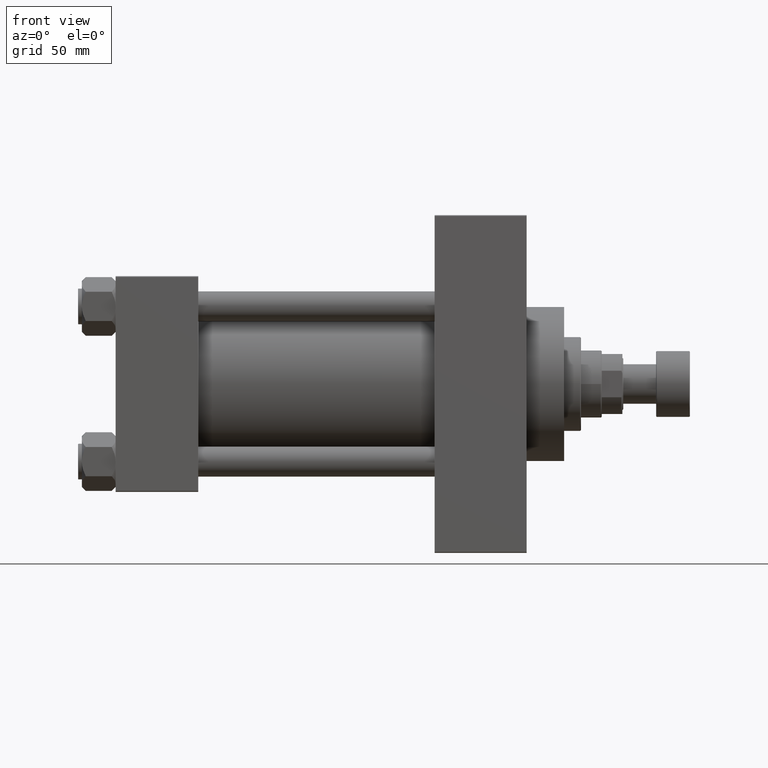
[diagram: clean part render]
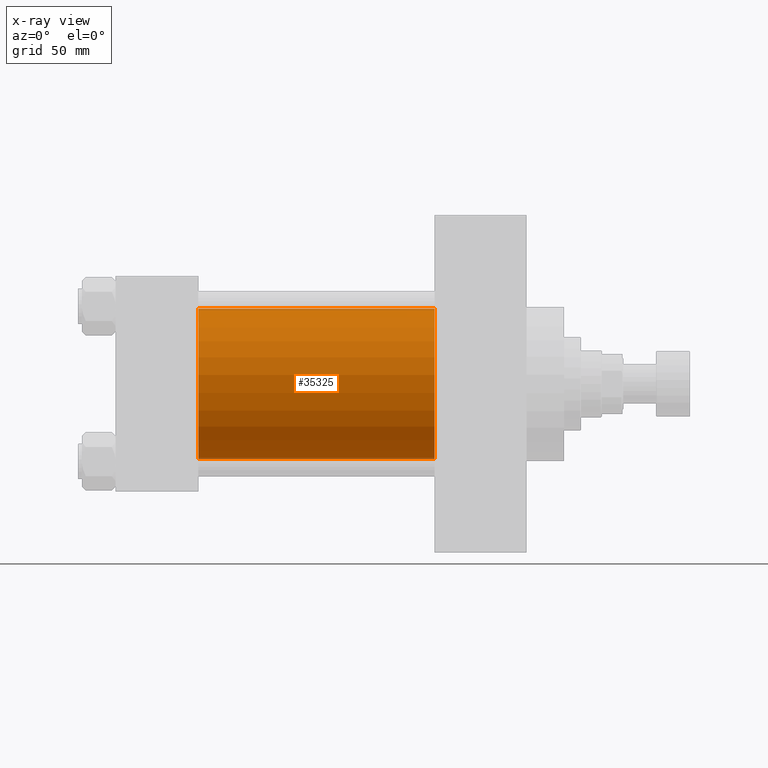
[diagram: x-ray — body ghosted, one internal face saturated and labeled with its STEP entity id]
A machine part, front view, then the same camera in x-ray: the body is ghosted and one INTERNAL B-rep face — a face not visible from any outside direction — is saturated and labeled: STEP entity #35325.
In plain terms, the highlighted cylindrical surface (partial cylindrical patch) has radius 40 mm, axis along (-1, -0, -0).
Its self-contained STEP definition (entity closure, byte-faithful):
#382 = ORIENTED_EDGE ( 'NONE', *, *, #38565, .T. ) ;
#1920 = VERTEX_POINT ( 'NONE', #10186 ) ;
#2093 = CARTESIAN_POINT ( 'NONE',  ( 169.9999999999999716, -2.602085213965210642E-15, 40.00000000000000000 ) ) ;
#4091 = DIRECTION ( 'NONE',  ( 0.000000000000000000, 0.000000000000000000, -1.000000000000000000 ) ) ;
#4336 = CARTESIAN_POINT ( 'NONE',  ( 44.00000000000000000, -2.602085213965210642E-15, 0.000000000000000000 ) ) ;
#6065 = VERTEX_POINT ( 'NONE', #2093 ) ;
#9878 = EDGE_LOOP ( 'NONE', ( #382, #29515, #43562, #16043 ) ) ;
#10186 = CARTESIAN_POINT ( 'NONE',  ( 44.00000000000000000, -2.602085213965210642E-15, 40.00000000000000000 ) ) ;
#10403 = VECTOR ( 'NONE', #18735, 1000.000000000000000 ) ;
#10742 = CARTESIAN_POINT ( 'NONE',  ( 169.9999999999999716, 2.296501982624201990E-15, -40.00000000000000000 ) ) ;
#12495 = DIRECTION ( 'NONE',  ( 0.000000000000000000, 0.000000000000000000, -1.000000000000000000 ) ) ;
#14752 = AXIS2_PLACEMENT_3D ( 'NONE', #18311, #21008, #28536 ) ;
#14849 = LINE ( 'NONE', #34059, #10403 ) ;
#16043 = ORIENTED_EDGE ( 'NONE', *, *, #18223, .F. ) ;
#16146 = CARTESIAN_POINT ( 'NONE',  ( 169.9999999999999716, -2.602085213965210642E-15, 0.000000000000000000 ) ) ;
#17595 = FACE_OUTER_BOUND ( 'NONE', #9878, .T. ) ;
#18223 = EDGE_CURVE ( 'NONE', #6065, #1920, #14849, .T. ) ;
#18311 = CARTESIAN_POINT ( 'NONE',  ( 169.9999999999999716, -2.602085213965210642E-15, 0.000000000000000000 ) ) ;
#18735 = DIRECTION ( 'NONE',  ( -1.000000000000000000, -0.000000000000000000, -0.000000000000000000 ) ) ;
#19259 = EDGE_CURVE ( 'NONE', #1920, #41375, #32173, .T. ) ;
#21008 = DIRECTION ( 'NONE',  ( -1.000000000000000000, -0.000000000000000000, -0.000000000000000000 ) ) ;
#21316 = AXIS2_PLACEMENT_3D ( 'NONE', #4336, #41793, #4091 ) ;
#25574 = DIRECTION ( 'NONE',  ( -1.000000000000000000, -0.000000000000000000, -0.000000000000000000 ) ) ;
#28536 = DIRECTION ( 'NONE',  ( 0.000000000000000000, 0.000000000000000000, 1.000000000000000000 ) ) ;
#29316 = CARTESIAN_POINT ( 'NONE',  ( 44.00000000000000000, 2.296501982624201990E-15, -40.00000000000000000 ) ) ;
#29498 = CYLINDRICAL_SURFACE ( 'NONE', #14752, 40.00000000000000000 ) ;
#29515 = ORIENTED_EDGE ( 'NONE', *, *, #45854, .T. ) ;
#30252 = CIRCLE ( 'NONE', #42677, 40.00000000000000000 ) ;
#31044 = CARTESIAN_POINT ( 'NONE',  ( 169.9999999999999716, 2.296501982624201990E-15, -40.00000000000000000 ) ) ;
#32173 = CIRCLE ( 'NONE', #21316, 40.00000000000000000 ) ;
#32638 = LINE ( 'NONE', #10742, #39656 ) ;
#34059 = CARTESIAN_POINT ( 'NONE',  ( 169.9999999999999716, -2.602085213965210642E-15, 40.00000000000000000 ) ) ;
#35081 = VERTEX_POINT ( 'NONE', #31044 ) ;
#35325 = ADVANCED_FACE ( 'NONE', ( #17595 ), #29498, .F. ) ;
#38565 = EDGE_CURVE ( 'NONE', #6065, #35081, #30252, .T. ) ;
#39656 = VECTOR ( 'NONE', #25574, 1000.000000000000000 ) ;
#41375 = VERTEX_POINT ( 'NONE', #29316 ) ;
#41793 = DIRECTION ( 'NONE',  ( 1.000000000000000000, 0.000000000000000000, 0.000000000000000000 ) ) ;
#42677 = AXIS2_PLACEMENT_3D ( 'NONE', #16146, #45842, #12495 ) ;
#43562 = ORIENTED_EDGE ( 'NONE', *, *, #19259, .F. ) ;
#45842 = DIRECTION ( 'NONE',  ( 1.000000000000000000, 0.000000000000000000, 0.000000000000000000 ) ) ;
#45854 = EDGE_CURVE ( 'NONE', #35081, #41375, #32638, .T. ) ;